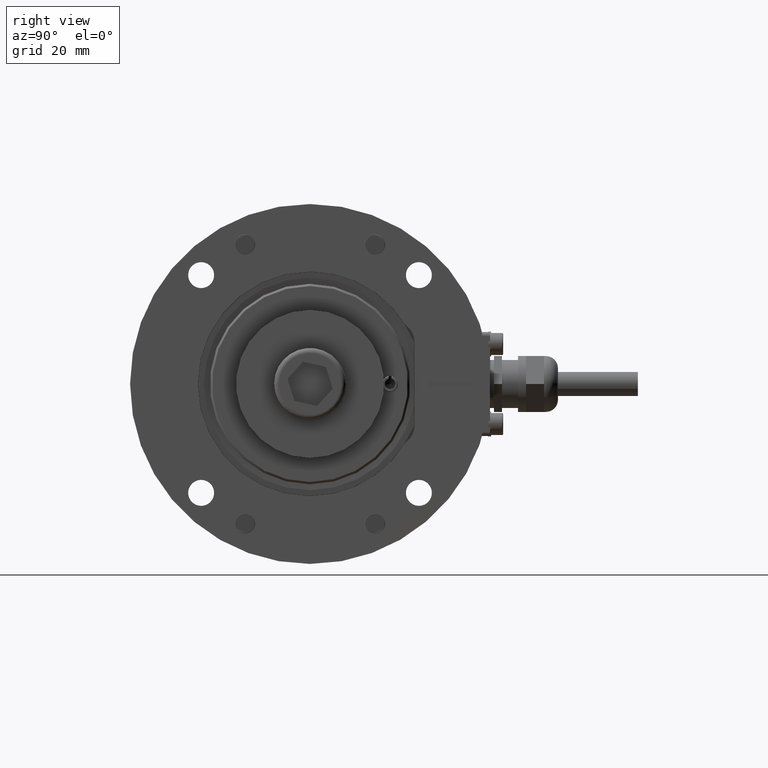
[diagram: clean part render]
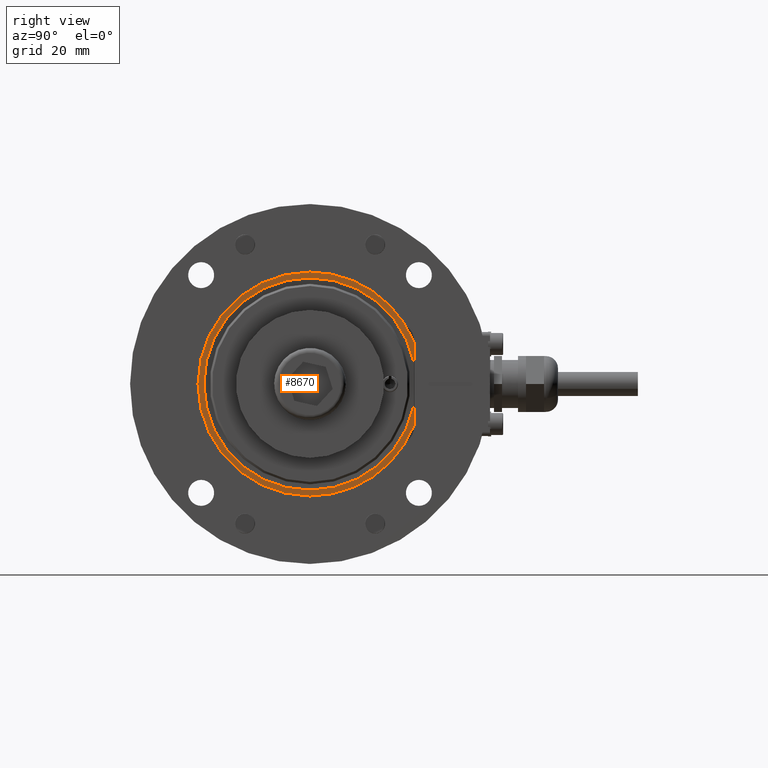
[diagram: same view with one face highlighted and labeled with its STEP entity id]
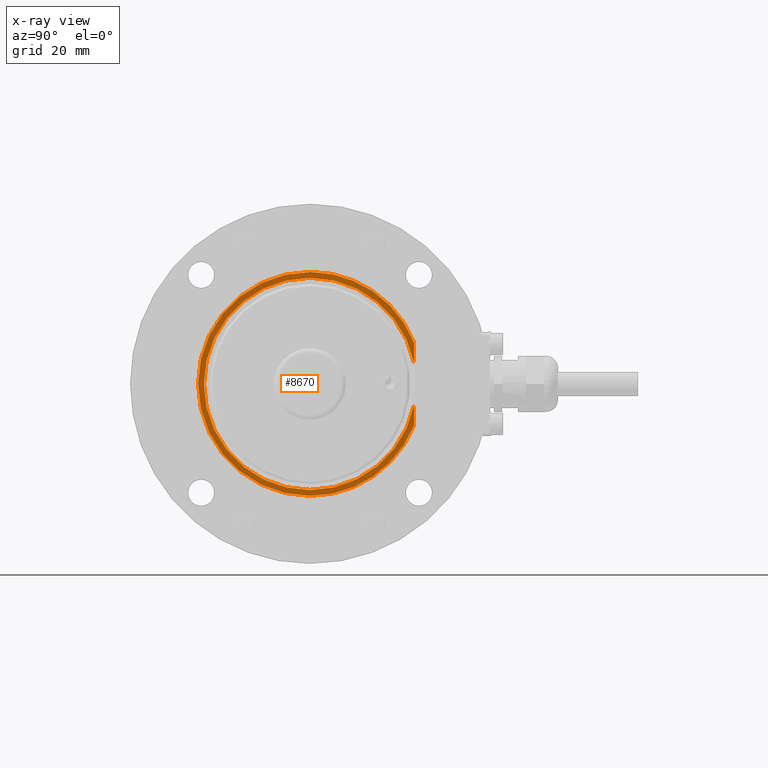
[diagram: x-ray of the same camera — body ghosted, the highlighted face saturated]
A machine part, right view. The second image highlights one B-rep face of the part: STEP entity #8670.
The next image is the same camera in x-ray: the body ghosted, the highlighted face saturated — about 0% of this face is hidden behind the body in this view.
In plain terms, the highlighted planar face has unit normal (-1, 0, 0).
Its self-contained STEP definition (entity closure, byte-faithful):
#621 = ORIENTED_EDGE ( 'NONE', *, *, #10097, .T. ) ;
#627 = CARTESIAN_POINT ( 'NONE',  ( 67.00000000000001421, -3.469446951953614189E-15, 0.000000000000000000 ) ) ;
#677 = DIRECTION ( 'NONE',  ( 0.000000000000000000, 0.000000000000000000, 1.000000000000000000 ) ) ;
#699 = EDGE_CURVE ( 'NONE', #13978, #8729, #12082, .T. ) ;
#734 = CARTESIAN_POINT ( 'NONE',  ( 67.00000000000002842, 26.00000000000000711, 10.39230484541324451 ) ) ;
#909 = CARTESIAN_POINT ( 'NONE',  ( 67.00000000000001421, -3.469446951953614189E-15, 0.000000000000000000 ) ) ;
#1154 = AXIS2_PLACEMENT_3D ( 'NONE', #12862, #2602, #9550 ) ;
#1606 = DIRECTION ( 'NONE',  ( -1.000000000000000000, 0.000000000000000000, -0.000000000000000000 ) ) ;
#1676 = CIRCLE ( 'NONE', #1154, 28.00000000000000000 ) ;
#2007 = CARTESIAN_POINT ( 'NONE',  ( 67.00000000000002842, 0.000000000000000000, 0.000000000000000000 ) ) ;
#2058 = DIRECTION ( 'NONE',  ( 0.000000000000000000, 0.000000000000000000, 1.000000000000000000 ) ) ;
#2112 = DIRECTION ( 'NONE',  ( -1.000000000000000000, -0.000000000000000000, -0.000000000000000000 ) ) ;
#2113 = CARTESIAN_POINT ( 'NONE',  ( 67.00000000000001421, -3.469446951953614189E-15, 0.000000000000000000 ) ) ;
#2158 = DIRECTION ( 'NONE',  ( 0.000000000000000000, 0.000000000000000000, 1.000000000000000000 ) ) ;
#2231 = ORIENTED_EDGE ( 'NONE', *, *, #4723, .T. ) ;
#2245 = AXIS2_PLACEMENT_3D ( 'NONE', #2113, #11316, #2158 ) ;
#2278 = CIRCLE ( 'NONE', #5321, 28.00000000000000000 ) ;
#2343 = ORIENTED_EDGE ( 'NONE', *, *, #699, .F. ) ;
#2422 = VECTOR ( 'NONE', #2732, 1000.000000000000000 ) ;
#2602 = DIRECTION ( 'NONE',  ( -1.000000000000000000, -0.000000000000000000, -0.000000000000000000 ) ) ;
#2732 = DIRECTION ( 'NONE',  ( -0.000000000000000000, -0.000000000000000000, 1.000000000000000000 ) ) ;
#2969 = AXIS2_PLACEMENT_3D ( 'NONE', #2007, #2112, #2058 ) ;
#4440 = CARTESIAN_POINT ( 'NONE',  ( 67.00000000000002842, 26.00000000000000711, -5.311827995718862105 ) ) ;
#4557 = ORIENTED_EDGE ( 'NONE', *, *, #12083, .F. ) ;
#4634 = ORIENTED_EDGE ( 'NONE', *, *, #4689, .F. ) ;
#4689 = EDGE_CURVE ( 'NONE', #11632, #8883, #2278, .T. ) ;
#4698 = AXIS2_PLACEMENT_3D ( 'NONE', #909, #5180, #10070 ) ;
#4723 = EDGE_CURVE ( 'NONE', #5817, #10789, #13813, .T. ) ;
#5029 = CARTESIAN_POINT ( 'NONE',  ( 67.00000000000002842, 26.00000000000000711, -34.00000000000000000 ) ) ;
#5180 = DIRECTION ( 'NONE',  ( -1.000000000000000000, -0.000000000000000000, 0.000000000000000000 ) ) ;
#5321 = AXIS2_PLACEMENT_3D ( 'NONE', #6521, #7574, #8792 ) ;
#5417 = CARTESIAN_POINT ( 'NONE',  ( 67.00000000000002842, 3.429011037612589670E-15, -28.00000000000000355 ) ) ;
#5497 = VERTEX_POINT ( 'NONE', #4440 ) ;
#5817 = VERTEX_POINT ( 'NONE', #14460 ) ;
#5988 = VERTEX_POINT ( 'NONE', #12183 ) ;
#6412 = LINE ( 'NONE', #10437, #10562 ) ;
#6521 = CARTESIAN_POINT ( 'NONE',  ( 67.00000000000002842, 0.000000000000000000, 0.000000000000000000 ) ) ;
#7574 = DIRECTION ( 'NONE',  ( -1.000000000000000000, -0.000000000000000000, -0.000000000000000000 ) ) ;
#7863 = ORIENTED_EDGE ( 'NONE', *, *, #14018, .T. ) ;
#8173 = LINE ( 'NONE', #5029, #2422 ) ;
#8507 = DIRECTION ( 'NONE',  ( -0.000000000000000000, -0.000000000000000000, 1.000000000000000000 ) ) ;
#8670 = ADVANCED_FACE ( 'NONE', ( #13295 ), #12019, .F. ) ;
#8729 = VERTEX_POINT ( 'NONE', #734 ) ;
#8792 = DIRECTION ( 'NONE',  ( 0.000000000000000000, 0.000000000000000000, 1.000000000000000000 ) ) ;
#8883 = VERTEX_POINT ( 'NONE', #5417 ) ;
#9550 = DIRECTION ( 'NONE',  ( 0.000000000000000000, 0.000000000000000000, 1.000000000000000000 ) ) ;
#9903 = EDGE_CURVE ( 'NONE', #5988, #8729, #6412, .T. ) ;
#10070 = DIRECTION ( 'NONE',  ( 0.000000000000000000, 0.000000000000000000, 1.000000000000000000 ) ) ;
#10097 = EDGE_CURVE ( 'NONE', #10789, #5988, #11447, .T. ) ;
#10102 = ORIENTED_EDGE ( 'NONE', *, *, #9903, .T. ) ;
#10437 = CARTESIAN_POINT ( 'NONE',  ( 67.00000000000002842, 26.00000000000000711, -34.00000000000000000 ) ) ;
#10562 = VECTOR ( 'NONE', #8507, 1000.000000000000000 ) ;
#10615 = CARTESIAN_POINT ( 'NONE',  ( 67.00000000000002842, 26.00000000000001421, -10.39230484541324628 ) ) ;
#10789 = VERTEX_POINT ( 'NONE', #12845 ) ;
#10934 = EDGE_CURVE ( 'NONE', #11632, #5497, #8173, .T. ) ;
#11316 = DIRECTION ( 'NONE',  ( -1.000000000000000000, -0.000000000000000000, 0.000000000000000000 ) ) ;
#11447 = CIRCLE ( 'NONE', #4698, 26.53705930686551895 ) ;
#11460 = CARTESIAN_POINT ( 'NONE',  ( 67.00000000000002842, 0.000000000000000000, 28.00000000000000355 ) ) ;
#11632 = VERTEX_POINT ( 'NONE', #10615 ) ;
#12019 = PLANE ( 'NONE',  #12886 ) ;
#12082 = CIRCLE ( 'NONE', #2969, 28.00000000000000000 ) ;
#12083 = EDGE_CURVE ( 'NONE', #8883, #13978, #1676, .T. ) ;
#12151 = AXIS2_PLACEMENT_3D ( 'NONE', #627, #12208, #677 ) ;
#12183 = CARTESIAN_POINT ( 'NONE',  ( 67.00000000000001421, 26.00000000000000711, 5.311827995718357620 ) ) ;
#12208 = DIRECTION ( 'NONE',  ( -1.000000000000000000, -0.000000000000000000, 0.000000000000000000 ) ) ;
#12349 = ORIENTED_EDGE ( 'NONE', *, *, #10934, .T. ) ;
#12462 = CIRCLE ( 'NONE', #2245, 26.53705930686551895 ) ;
#12845 = CARTESIAN_POINT ( 'NONE',  ( 67.00000000000001421, -2.195944780599805232E-16, 26.53705930686551895 ) ) ;
#12862 = CARTESIAN_POINT ( 'NONE',  ( 67.00000000000002842, 0.000000000000000000, 0.000000000000000000 ) ) ;
#12886 = AXIS2_PLACEMENT_3D ( 'NONE', #13286, #1606, #14446 ) ;
#13286 = CARTESIAN_POINT ( 'NONE',  ( 67.00000000000001421, 28.00000000000000000, 0.000000000000000000 ) ) ;
#13295 = FACE_OUTER_BOUND ( 'NONE', #13924, .T. ) ;
#13813 = CIRCLE ( 'NONE', #12151, 26.53705930686551895 ) ;
#13924 = EDGE_LOOP ( 'NONE', ( #12349, #7863, #2231, #621, #10102, #2343, #4557, #4634 ) ) ;
#13978 = VERTEX_POINT ( 'NONE', #11460 ) ;
#14018 = EDGE_CURVE ( 'NONE', #5497, #5817, #12462, .T. ) ;
#14446 = DIRECTION ( 'NONE',  ( -0.000000000000000000, 0.000000000000000000, 1.000000000000000000 ) ) ;
#14460 = CARTESIAN_POINT ( 'NONE',  ( 67.00000000000001421, -3.469446951953614189E-15, -26.53705930686551895 ) ) ;